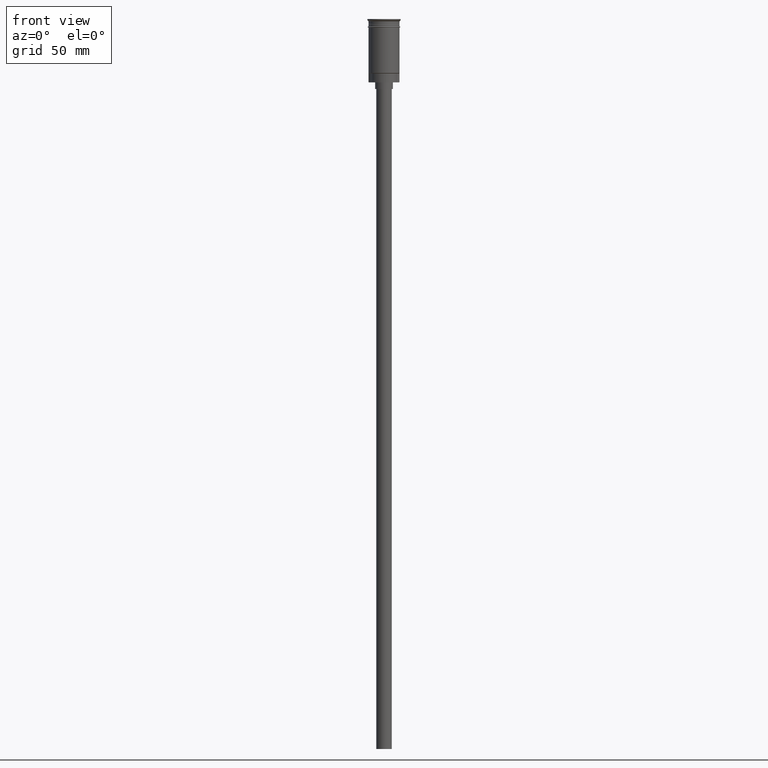
[diagram: clean part render]
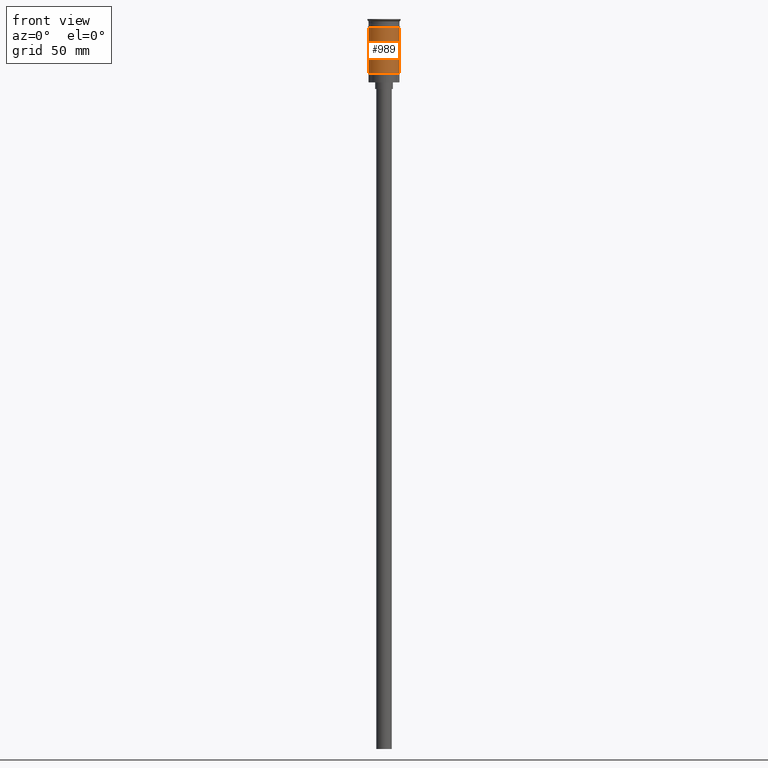
[diagram: same view with one face highlighted and labeled with its STEP entity id]
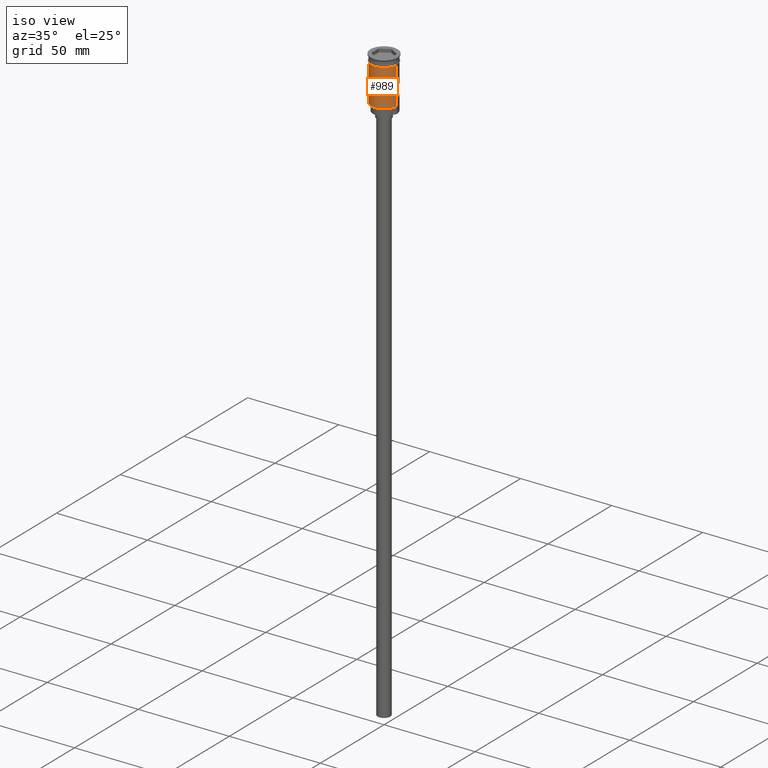
[diagram: same view with one face highlighted and labeled with its STEP entity id]
A machine part, front view. The second image highlights one B-rep face of the part: STEP entity #989.
A second angle (iso view) of the same face is appended — the face is thin or edge-on in the first view.
In plain terms, the highlighted cylindrical surface (edge-blend (fillet) strip) has radius 7 mm, axis along (-0, -0, 1).
Its self-contained STEP definition (entity closure, byte-faithful):
#17 = CIRCLE ( 'NONE', #1466, 6.999999999999999112 ) ;
#52 = CARTESIAN_POINT ( 'NONE',  ( 0.000000000000000000, 0.000000000000000000, -3.799999999999998490 ) ) ;
#64 = VERTEX_POINT ( 'NONE', #388 ) ;
#100 = EDGE_LOOP ( 'NONE', ( #450, #938, #402, #1357 ) ) ;
#144 = EDGE_CURVE ( 'NONE', #64, #1048, #673, .T. ) ;
#268 = AXIS2_PLACEMENT_3D ( 'NONE', #901, #1393, #908 ) ;
#288 = CARTESIAN_POINT ( 'NONE',  ( -7.000000000000000000, 8.572527594031472204E-16, -3.799999999999998490 ) ) ;
#312 = DIRECTION ( 'NONE',  ( -0.000000000000000000, -0.000000000000000000, 1.000000000000000000 ) ) ;
#318 = DIRECTION ( 'NONE',  ( -1.000000000000000000, 0.000000000000000000, 0.000000000000000000 ) ) ;
#388 = CARTESIAN_POINT ( 'NONE',  ( -6.999999999999993783, 0.000000000000000000, -24.30000000000006466 ) ) ;
#402 = ORIENTED_EDGE ( 'NONE', *, *, #1240, .T. ) ;
#407 = VECTOR ( 'NONE', #312, 1000.000000000000000 ) ;
#450 = ORIENTED_EDGE ( 'NONE', *, *, #144, .F. ) ;
#519 = EDGE_CURVE ( 'NONE', #1048, #957, #17, .T. ) ;
#544 = VECTOR ( 'NONE', #1062, 1000.000000000000000 ) ;
#649 = CARTESIAN_POINT ( 'NONE',  ( 6.999999999999996447, 8.572527594031468259E-16, -24.30000000000006466 ) ) ;
#671 = DIRECTION ( 'NONE',  ( 1.000000000000000000, 0.000000000000000000, 0.000000000000000000 ) ) ;
#673 = LINE ( 'NONE', #1425, #407 ) ;
#684 = LINE ( 'NONE', #1183, #544 ) ;
#773 = CARTESIAN_POINT ( 'NONE',  ( 6.999999999999999112, 0.000000000000000000, -3.799999999999998490 ) ) ;
#800 = DIRECTION ( 'NONE',  ( -0.000000000000000000, -0.000000000000000000, 1.000000000000000000 ) ) ;
#901 = CARTESIAN_POINT ( 'NONE',  ( 0.000000000000000000, 0.000000000000000000, 0.000000000000000000 ) ) ;
#908 = DIRECTION ( 'NONE',  ( 1.000000000000000000, 0.000000000000000000, 0.000000000000000000 ) ) ;
#938 = ORIENTED_EDGE ( 'NONE', *, *, #1140, .T. ) ;
#957 = VERTEX_POINT ( 'NONE', #773 ) ;
#989 = ADVANCED_FACE ( 'NONE', ( #1276 ), #1159, .T. ) ;
#1048 = VERTEX_POINT ( 'NONE', #288 ) ;
#1062 = DIRECTION ( 'NONE',  ( -0.000000000000000000, -0.000000000000000000, 1.000000000000000000 ) ) ;
#1066 = VERTEX_POINT ( 'NONE', #649 ) ;
#1140 = EDGE_CURVE ( 'NONE', #64, #1066, #1143, .T. ) ;
#1143 = CIRCLE ( 'NONE', #1275, 6.999999999999996447 ) ;
#1159 = CYLINDRICAL_SURFACE ( 'NONE', #268, 6.999999999999996447 ) ;
#1183 = CARTESIAN_POINT ( 'NONE',  ( 6.999999999999996447, 0.000000000000000000, 0.000000000000000000 ) ) ;
#1240 = EDGE_CURVE ( 'NONE', #1066, #957, #684, .T. ) ;
#1275 = AXIS2_PLACEMENT_3D ( 'NONE', #1296, #1432, #318 ) ;
#1276 = FACE_OUTER_BOUND ( 'NONE', #100, .T. ) ;
#1296 = CARTESIAN_POINT ( 'NONE',  ( 0.000000000000000000, 0.000000000000000000, -24.30000000000006466 ) ) ;
#1357 = ORIENTED_EDGE ( 'NONE', *, *, #519, .F. ) ;
#1393 = DIRECTION ( 'NONE',  ( -0.000000000000000000, -0.000000000000000000, 1.000000000000000000 ) ) ;
#1425 = CARTESIAN_POINT ( 'NONE',  ( -6.999999999999996447, 8.572527594031468259E-16, 0.000000000000000000 ) ) ;
#1432 = DIRECTION ( 'NONE',  ( -0.000000000000000000, -0.000000000000000000, 1.000000000000000000 ) ) ;
#1466 = AXIS2_PLACEMENT_3D ( 'NONE', #52, #800, #671 ) ;